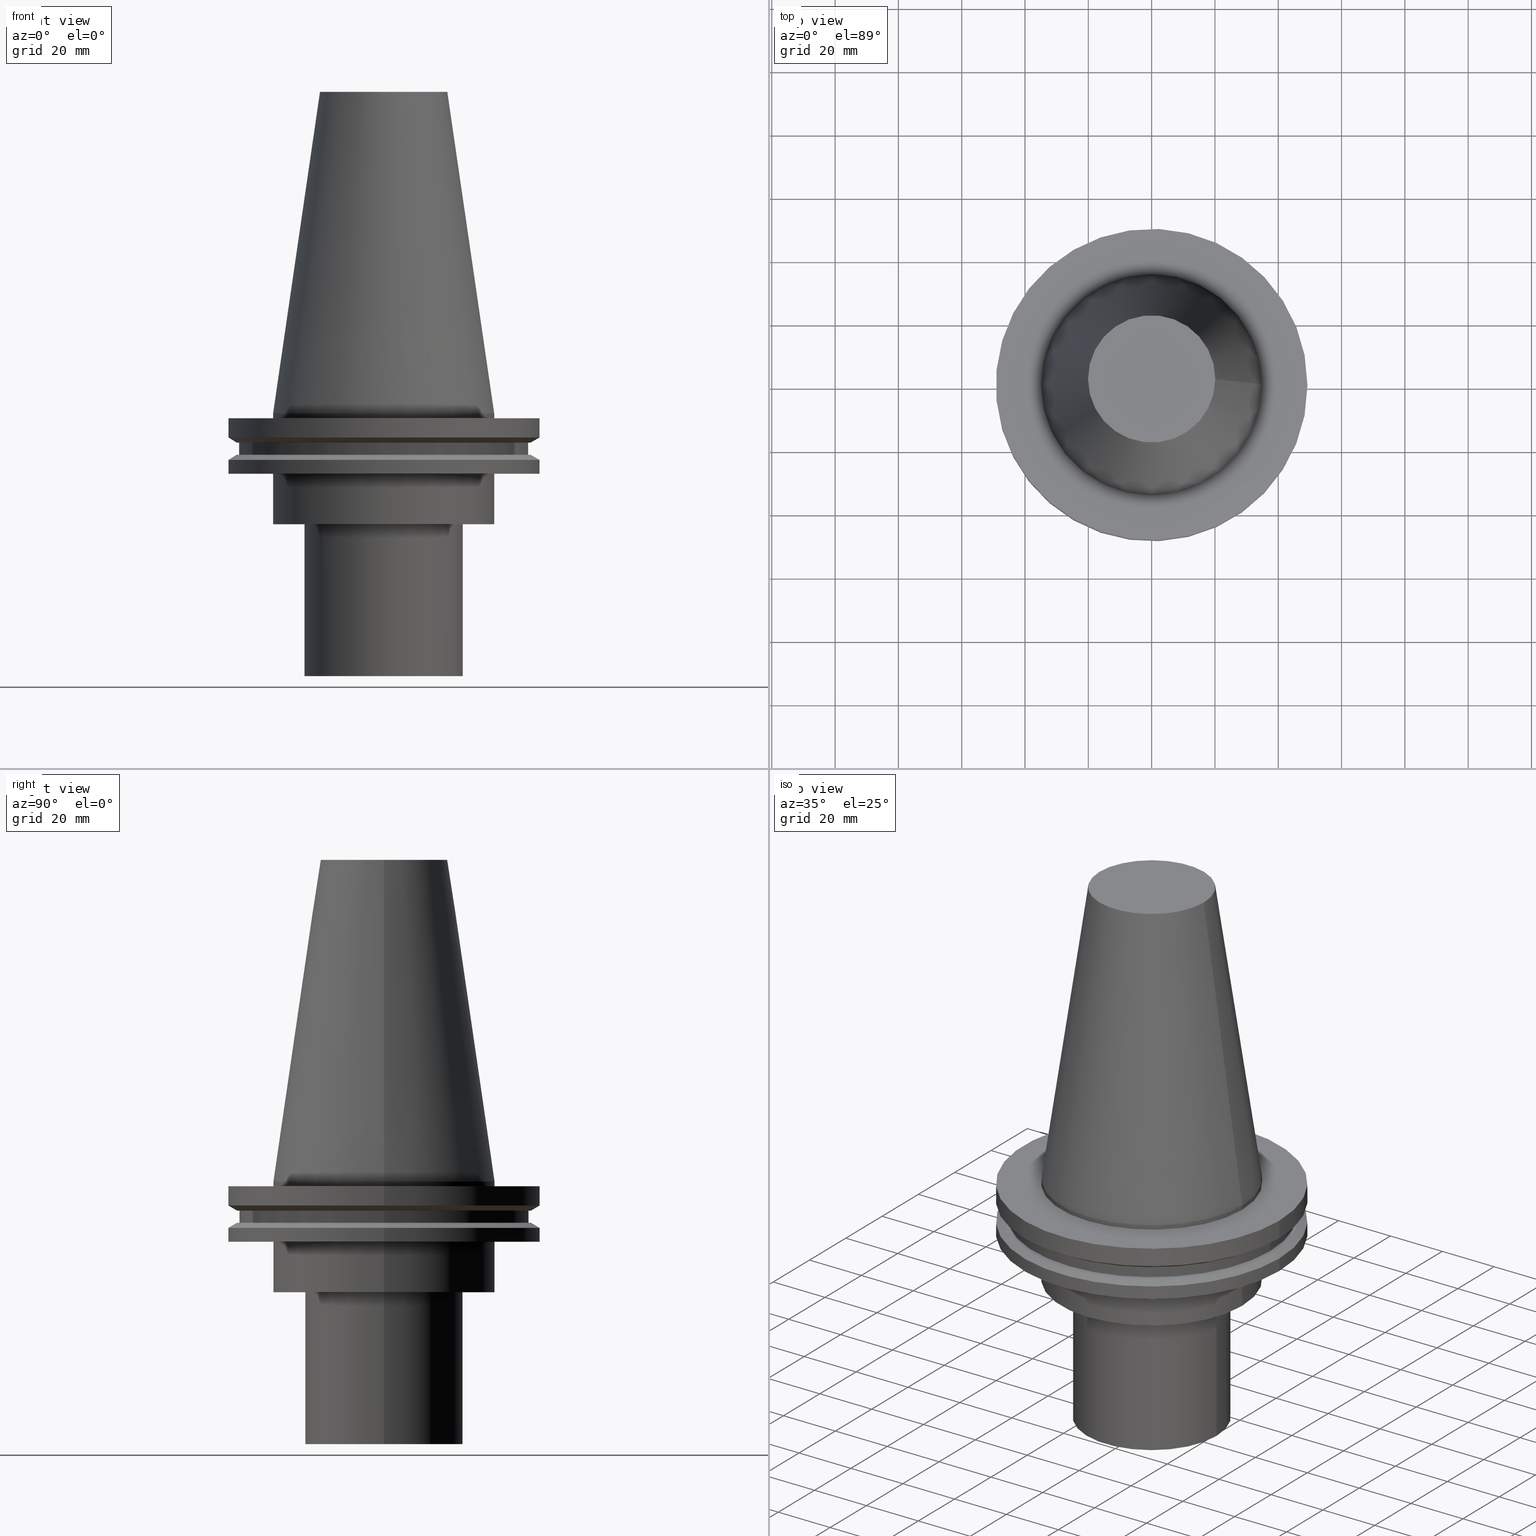
[diagram: canonical four-view strip — front | top / right | iso, engineering-drawing reading convention]
A machine part, canonical four-view strip (front | top / right | iso — engineering-drawing reading convention). The complete STEP part file that produces these views, byte-faithful:
ISO-10303-21;
HEADER;
FILE_DESCRIPTION (( 'STEP AP203' ),
    '1' );
FILE_NAME ('11.368.652.stp',
    '2022-03-09T15:20:57',
    ( '' ),
    ( '' ),
    'SwSTEP 2.0',
    'SolidWorks 2021',
    '' );
FILE_SCHEMA (( 'CONFIG_CONTROL_DESIGN' ));
ENDSEC;

DATA;
#1 = FACE_BOUND ( 'NONE', #37, .T. ) ;
#2 = PLANE ( 'NONE',  #176 ) ;
#3 = CARTESIAN_POINT ( 'NONE',  ( 49.21499999999999631, 0.000000000000000000, -1.499999999999987566 ) ) ;
#4 = EDGE_LOOP ( 'NONE', ( #29 ) ) ;
#5 = EDGE_CURVE ( 'NONE', #139, #139, #308, .T. ) ;
#6 = CARTESIAN_POINT ( 'NONE',  ( 0.000000000000000000, 0.000000000000000000, 0.000000000000000000 ) ) ;
#7 = COORDINATED_UNIVERSAL_TIME_OFFSET ( 6, 0, .BEHIND. ) ;
#8 = AXIS2_PLACEMENT_3D ( 'NONE', #344, #74, #14 ) ;
#9 = DIRECTION ( 'NONE',  ( 1.000000000000000000, 0.000000000000000000, 0.000000000000000000 ) ) ;
#10 = CARTESIAN_POINT ( 'NONE',  ( 49.21499999999998920, 0.000000000000000000, -14.65761014474876944 ) ) ;
#11 = AXIS2_PLACEMENT_3D ( 'NONE', #267, #376, #383 ) ;
#12 = ADVANCED_FACE ( 'NONE', ( #1, #124 ), #239, .T. ) ;
#13 = DIRECTION ( 'NONE',  ( -0.000000000000000000, -0.000000000000000000, 1.000000000000000000 ) ) ;
#14 = DIRECTION ( 'NONE',  ( 1.000000000000000000, 0.000000000000000000, 0.000000000000000000 ) ) ;
#15 = FACE_OUTER_BOUND ( 'NONE', #78, .T. ) ;
#16 = CALENDAR_DATE ( 2022, 9, 3 ) ;
#17 = CC_DESIGN_SECURITY_CLASSIFICATION ( #43, ( #364 ) ) ;
#18 = PLANE ( 'NONE',  #38 ) ;
#19 = DIRECTION ( 'NONE',  ( 1.000000000000000000, 0.000000000000000000, 0.000000000000000000 ) ) ;
#20 = EDGE_LOOP ( 'NONE', ( #157 ) ) ;
#21 = FACE_OUTER_BOUND ( 'NONE', #322, .T. ) ;
#22 = PERSON_AND_ORGANIZATION_ROLE ( 'design_supplier' ) ;
#23 = ORIENTED_EDGE ( 'NONE', *, *, #223, .F. ) ;
#24 = LOCAL_TIME ( 9, 20, 57.00000000000000000, #229 ) ;
#25 = CARTESIAN_POINT ( 'NONE',  ( 0.000000000000000000, 0.000000000000000000, -9.204999999999991189 ) ) ;
#26 = PLANE ( 'NONE',  #358 ) ;
#27 = ORIENTED_EDGE ( 'NONE', *, *, #155, .T. ) ;
#28 = VERTEX_POINT ( 'NONE', #149 ) ;
#29 = ORIENTED_EDGE ( 'NONE', *, *, #345, .T. ) ;
#30 = ADVANCED_FACE ( 'NONE', ( #122, #332 ), #60, .T. ) ;
#31 = EDGE_LOOP ( 'NONE', ( #361 ) ) ;
#32 = EDGE_LOOP ( 'NONE', ( #334 ) ) ;
#33 = EDGE_LOOP ( 'NONE', ( #148 ) ) ;
#34 = DIRECTION ( 'NONE',  ( 1.000000000000000000, 0.000000000000000000, 0.000000000000000000 ) ) ;
#35 = EDGE_CURVE ( 'NONE', #300, #300, #324, .T. ) ;
#36 = CARTESIAN_POINT ( 'NONE',  ( 25.00000000000000000, 0.000000000000000000, -83.00000000000000000 ) ) ;
#37 = EDGE_LOOP ( 'NONE', ( #238 ) ) ;
#38 = AXIS2_PLACEMENT_3D ( 'NONE', #228, #379, #75 ) ;
#39 = CARTESIAN_POINT ( 'NONE',  ( 0.000000000000000000, 0.000000000000000000, 101.5999999999999943 ) ) ;
#40 = APPROVAL_ROLE ( '' ) ;
#41 = ADVANCED_BREP_SHAPE_REPRESENTATION ( '11.368.652', ( #170, #8 ), #336 ) ;
#42 = FACE_OUTER_BOUND ( 'NONE', #20, .T. ) ;
#43 = SECURITY_CLASSIFICATION ( '', '', #146 ) ;
#44 = APPROVAL ( #335, 'UNSPECIFIED' ) ;
#45 = CARTESIAN_POINT ( 'NONE',  ( 0.000000000000000000, 0.000000000000000000, -19.04999999999999716 ) ) ;
#46 = CARTESIAN_POINT ( 'NONE',  ( 46.43919780457007818, 0.000000000000000000, -13.05499999999999794 ) ) ;
#47 = DIRECTION ( 'NONE',  ( 1.000000000000000000, 0.000000000000000000, 0.000000000000000000 ) ) ;
#48 = APPROVAL_STATUS ( 'not_yet_approved' ) ;
#49 = DIRECTION ( 'NONE',  ( 0.000000000000000000, -0.000000000000000000, 1.000000000000000000 ) ) ;
#50 = DATE_AND_TIME ( #264, #24 ) ;
#51 = CARTESIAN_POINT ( 'NONE',  ( 0.000000000000000000, 0.000000000000000000, 101.5999999999999943 ) ) ;
#52 = PERSON_AND_ORGANIZATION_ROLE ( 'classification_officer' ) ;
#53 = CARTESIAN_POINT ( 'NONE',  ( 0.000000000000000000, 46.43919780457007818, -9.204999999999998295 ) ) ;
#54 = FACE_OUTER_BOUND ( 'NONE', #93, .T. ) ;
#55 = CC_DESIGN_DATE_AND_TIME_ASSIGNMENT ( #380, #293, ( #43 ) ) ;
#56 = FACE_BOUND ( 'NONE', #388, .T. ) ;
#57 = UNCERTAINTY_MEASURE_WITH_UNIT (LENGTH_MEASURE( 1.000000000000000082E-05 ), #314, 'distance_accuracy_value', 'NONE');
#58 = ADVANCED_FACE ( 'NONE', ( #197 ), #2, .F. ) ;
#59 = AXIS2_PLACEMENT_3D ( 'NONE', #347, #297, #203 ) ;
#60 = CYLINDRICAL_SURFACE ( 'NONE', #69, 45.64500000000000313 ) ;
#61 = PRODUCT ( '11.368.652', '11.368.652', '', ( #247 ) ) ;
#62 = DIRECTION ( 'NONE',  ( 1.000000000000000000, 0.000000000000000000, 0.000000000000000000 ) ) ;
#63 = CC_DESIGN_PERSON_AND_ORGANIZATION_ASSIGNMENT ( #342, #189, ( #61 ) ) ;
#64 = APPROVAL_DATE_TIME ( #136, #83 ) ;
#65 = EDGE_LOOP ( 'NONE', ( #23 ) ) ;
#66 = DIRECTION ( 'NONE',  ( 1.000000000000000000, 0.000000000000000000, 0.000000000000000000 ) ) ;
#67 = CIRCLE ( 'NONE', #392, 20.10819343178871321 ) ;
#68 = VERTEX_POINT ( 'NONE', #166 ) ;
#69 = AXIS2_PLACEMENT_3D ( 'NONE', #184, #302, #280 ) ;
#70 = PLANE ( 'NONE',  #82 ) ;
#71 = DIRECTION ( 'NONE',  ( -0.000000000000000000, -0.000000000000000000, 1.000000000000000000 ) ) ;
#72 = CARTESIAN_POINT ( 'NONE',  ( 45.64500000000000313, 0.000000000000000000, -9.204999999999991189 ) ) ;
#73 = DIRECTION ( 'NONE',  ( -0.000000000000000000, -0.000000000000000000, 1.000000000000000000 ) ) ;
#74 = DIRECTION ( 'NONE',  ( 0.000000000000000000, 0.000000000000000000, 1.000000000000000000 ) ) ;
#75 = DIRECTION ( 'NONE',  ( -1.000000000000000000, 0.000000000000000000, -0.000000000000000000 ) ) ;
#76 = SHAPE_DEFINITION_REPRESENTATION ( #304, #41 ) ;
#77 = DIRECTION ( 'NONE',  ( 0.000000000000000000, -0.000000000000000000, 1.000000000000000000 ) ) ;
#78 = EDGE_LOOP ( 'NONE', ( #217 ) ) ;
#79 = DIRECTION ( 'NONE',  ( 1.000000000000000000, 0.000000000000000000, 0.000000000000000000 ) ) ;
#80 = EDGE_LOOP ( 'NONE', ( #359 ) ) ;
#81 = CARTESIAN_POINT ( 'NONE',  ( 49.21500000000000341, 0.000000000000000000, -7.602389855251287187 ) ) ;
#82 = AXIS2_PLACEMENT_3D ( 'NONE', #246, #316, #162 ) ;
#83 = APPROVAL ( #48, 'UNSPECIFIED' ) ;
#84 = DIRECTION ( 'NONE',  ( 1.000000000000000000, 0.000000000000000000, 0.000000000000000000 ) ) ;
#85 = APPROVAL_PERSON_ORGANIZATION ( #307, #83, #169 ) ;
#86 = CARTESIAN_POINT ( 'NONE',  ( 49.21499999999998920, 0.000000000000000000, -19.04999999999999716 ) ) ;
#87 = ADVANCED_FACE ( 'NONE', ( #309, #42 ), #158, .T. ) ;
#88 = AXIS2_PLACEMENT_3D ( 'NONE', #284, #375, #125 ) ;
#89 = AXIS2_PLACEMENT_3D ( 'NONE', #291, #353, #19 ) ;
#90 = ORIENTED_EDGE ( 'NONE', *, *, #213, .T. ) ;
#91 = ORIENTED_EDGE ( 'NONE', *, *, #393, .T. ) ;
#92 = CC_DESIGN_PERSON_AND_ORGANIZATION_ASSIGNMENT ( #231, #52, ( #43 ) ) ;
#93 = EDGE_LOOP ( 'NONE', ( #216 ) ) ;
#94 = DIRECTION ( 'NONE',  ( 1.000000000000000000, 0.000000000000000000, 0.000000000000000000 ) ) ;
#95 = CIRCLE ( 'NONE', #59, 25.00000000000000000 ) ;
#96 = APPLICATION_PROTOCOL_DEFINITION ( 'international standard', 'config_control_design', 1994, #389 ) ;
#97 = FACE_OUTER_BOUND ( 'NONE', #32, .T. ) ;
#98 = AXIS2_PLACEMENT_3D ( 'NONE', #39, #288, #47 ) ;
#99 = VERTEX_POINT ( 'NONE', #163 ) ;
#100 = CIRCLE ( 'NONE', #161, 34.92499999999999005 ) ;
#101 = CYLINDRICAL_SURFACE ( 'NONE', #390, 25.00000000000000000 ) ;
#102 = DIRECTION ( 'NONE',  ( -0.000000000000000000, -0.000000000000000000, 1.000000000000000000 ) ) ;
#103 = DATE_AND_TIME ( #198, #165 ) ;
#104 = DIRECTION ( 'NONE',  ( 1.000000000000000000, 0.000000000000000000, 0.000000000000000000 ) ) ;
#105 = CARTESIAN_POINT ( 'NONE',  ( 34.92499999999999005, 0.000000000000000000, -1.499999999999987566 ) ) ;
#106 = EDGE_CURVE ( 'NONE', #181, #181, #204, .T. ) ;
#107 = CARTESIAN_POINT ( 'NONE',  ( 0.000000000000000000, 0.000000000000000000, -1.499999999999987566 ) ) ;
#108 = PERSON_AND_ORGANIZATION ( #274, #256 ) ;
#109 = FACE_BOUND ( 'NONE', #385, .T. ) ;
#110 = APPROVAL_ROLE ( '' ) ;
#111 = LOCAL_TIME ( 9, 20, 57.00000000000000000, #7 ) ;
#112 = DIRECTION ( 'NONE',  ( 1.000000000000000000, 0.000000000000000000, 0.000000000000000000 ) ) ;
#113 = ADVANCED_FACE ( 'NONE', ( #220, #97 ), #188, .T. ) ;
#114 = FACE_OUTER_BOUND ( 'NONE', #236, .T. ) ;
#115 = ORIENTED_EDGE ( 'NONE', *, *, #106, .F. ) ;
#116 = CARTESIAN_POINT ( 'NONE',  ( 0.000000000000000000, 34.92499999999999716, -35.00000000000000000 ) ) ;
#117 = EDGE_LOOP ( 'NONE', ( #233 ) ) ;
#118 = CONICAL_SURFACE ( 'NONE', #232, 49.21499999999998920, 1.047197551196554333 ) ;
#119 = CARTESIAN_POINT ( 'NONE',  ( 34.92499999999999716, 0.000000000000000000, -19.04999999999999716 ) ) ;
#120 = AXIS2_PLACEMENT_3D ( 'NONE', #53, #237, #84 ) ;
#121 = AXIS2_PLACEMENT_3D ( 'NONE', #340, #193, #218 ) ;
#122 = FACE_OUTER_BOUND ( 'NONE', #272, .T. ) ;
#123 = ADVANCED_FACE ( 'NONE', ( #370 ), #70, .F. ) ;
#124 = FACE_OUTER_BOUND ( 'NONE', #266, .T. ) ;
#125 = DIRECTION ( 'NONE',  ( 1.000000000000000000, 0.000000000000000000, 0.000000000000000000 ) ) ;
#126 =( NAMED_UNIT ( * ) SI_UNIT ( $, .STERADIAN. ) SOLID_ANGLE_UNIT ( ) );
#127 = DESIGN_CONTEXT ( 'detailed design', #389, 'design' ) ;
#128 = CARTESIAN_POINT ( 'NONE',  ( 0.000000000000000000, 0.000000000000000000, 0.000000000000000000 ) ) ;
#129 = CIRCLE ( 'NONE', #144, 45.64500000000000313 ) ;
#130 = PERSON_AND_ORGANIZATION ( #274, #256 ) ;
#131 = FACE_OUTER_BOUND ( 'NONE', #262, .T. ) ;
#132 = AXIS2_PLACEMENT_3D ( 'NONE', #248, #102, #224 ) ;
#133 = CARTESIAN_POINT ( 'NONE',  ( 0.000000000000000000, 0.000000000000000000, -9.204999999999991189 ) ) ;
#134 = APPROVAL_DATE_TIME ( #287, #44 ) ;
#135 = CARTESIAN_POINT ( 'NONE',  ( 0.000000000000000000, 0.000000000000000000, 101.5999999999999943 ) ) ;
#136 = DATE_AND_TIME ( #16, #381 ) ;
#137 = DIRECTION ( 'NONE',  ( -0.000000000000000000, -0.000000000000000000, 1.000000000000000000 ) ) ;
#138 = AXIS2_PLACEMENT_3D ( 'NONE', #25, #259, #145 ) ;
#139 = VERTEX_POINT ( 'NONE', #81 ) ;
#140 = APPROVAL_DATE_TIME ( #50, #175 ) ;
#141 = ORIENTED_EDGE ( 'NONE', *, *, #155, .F. ) ;
#142 = ADVANCED_FACE ( 'NONE', ( #15, #282 ), #368, .T. ) ;
#143 = CARTESIAN_POINT ( 'NONE',  ( 0.000000000000000000, 49.21499999999999631, -1.499999999999992895 ) ) ;
#144 = AXIS2_PLACEMENT_3D ( 'NONE', #269, #234, #327 ) ;
#145 = DIRECTION ( 'NONE',  ( 1.000000000000000000, 0.000000000000000000, 0.000000000000000000 ) ) ;
#146 = SECURITY_CLASSIFICATION_LEVEL ( 'unclassified' ) ;
#147 = FACE_OUTER_BOUND ( 'NONE', #150, .T. ) ;
#148 = ORIENTED_EDGE ( 'NONE', *, *, #191, .F. ) ;
#149 = CARTESIAN_POINT ( 'NONE',  ( 34.92499999999999005, 0.000000000000000000, 0.000000000000000000 ) ) ;
#150 = EDGE_LOOP ( 'NONE', ( #245 ) ) ;
#151 = ADVANCED_FACE ( 'NONE', ( #131, #286 ), #101, .T. ) ;
#152 = APPROVAL_PERSON_ORGANIZATION ( #311, #44, #40 ) ;
#153 = ORIENTED_EDGE ( 'NONE', *, *, #227, .F. ) ;
#154 = AXIS2_PLACEMENT_3D ( 'NONE', #391, #365, #62 ) ;
#155 = EDGE_CURVE ( 'NONE', #28, #28, #100, .T. ) ;
#156 = EDGE_LOOP ( 'NONE', ( #352 ) ) ;
#157 = ORIENTED_EDGE ( 'NONE', *, *, #223, .T. ) ;
#158 = CYLINDRICAL_SURFACE ( 'NONE', #88, 34.92499999999999005 ) ;
#159 = EDGE_CURVE ( 'NONE', #270, #270, #67, .T. ) ;
#160 = DIRECTION ( 'NONE',  ( 0.000000000000000000, 0.000000000000000000, -1.000000000000000000 ) ) ;
#161 = AXIS2_PLACEMENT_3D ( 'NONE', #128, #251, #9 ) ;
#162 = DIRECTION ( 'NONE',  ( -1.000000000000000000, 0.000000000000000000, -0.000000000000000000 ) ) ;
#163 = CARTESIAN_POINT ( 'NONE',  ( 45.64500000000000313, 0.000000000000000000, -13.05499999999999794 ) ) ;
#164 = DIRECTION ( 'NONE',  ( -0.000000000000000000, -0.000000000000000000, 1.000000000000000000 ) ) ;
#165 = LOCAL_TIME ( 9, 20, 57.00000000000000000, #258 ) ;
#166 = CARTESIAN_POINT ( 'NONE',  ( 34.92499999999999716, 0.000000000000000000, -35.00000000000000000 ) ) ;
#167 = CARTESIAN_POINT ( 'NONE',  ( 0.000000000000000000, 0.000000000000000000, -83.00000000000000000 ) ) ;
#168 = CALENDAR_DATE ( 2022, 9, 3 ) ;
#169 = APPROVAL_ROLE ( '' ) ;
#170 = MANIFOLD_SOLID_BREP ( 'CKB', #279 ) ;
#171 = PLANE ( 'NONE',  #120 ) ;
#172 = DIRECTION ( 'NONE',  ( 1.000000000000000000, 0.000000000000000000, 0.000000000000000000 ) ) ;
#173 = CALENDAR_DATE ( 2022, 9, 3 ) ;
#174 = EDGE_LOOP ( 'NONE', ( #183 ) ) ;
#175 = APPROVAL ( #328, 'UNSPECIFIED' ) ;
#176 = AXIS2_PLACEMENT_3D ( 'NONE', #372, #222, #317 ) ;
#177 = FACE_BOUND ( 'NONE', #65, .T. ) ;
#178 = PLANE ( 'NONE',  #219 ) ;
#179 = FACE_OUTER_BOUND ( 'NONE', #214, .T. ) ;
#180 = ORIENTED_EDGE ( 'NONE', *, *, #325, .F. ) ;
#181 = VERTEX_POINT ( 'NONE', #329 ) ;
#182 = EDGE_CURVE ( 'NONE', #357, #357, #362, .T. ) ;
#183 = ORIENTED_EDGE ( 'NONE', *, *, #182, .T. ) ;
#184 = CARTESIAN_POINT ( 'NONE',  ( 0.000000000000000000, 0.000000000000000000, 101.5999999999999943 ) ) ;
#185 = AXIS2_PLACEMENT_3D ( 'NONE', #337, #343, #66 ) ;
#186 = EDGE_LOOP ( 'NONE', ( #202 ) ) ;
#187 = AXIS2_PLACEMENT_3D ( 'NONE', #51, #263, #112 ) ;
#188 = CYLINDRICAL_SURFACE ( 'NONE', #98, 34.92499999999999716 ) ;
#189 = PERSON_AND_ORGANIZATION_ROLE ( 'design_owner' ) ;
#190 = CARTESIAN_POINT ( 'NONE',  ( 0.000000000000000000, 0.000000000000000000, 0.000000000000000000 ) ) ;
#191 = EDGE_CURVE ( 'NONE', #209, #209, #292, .T. ) ;
#192 = VERTEX_POINT ( 'NONE', #371 ) ;
#193 = DIRECTION ( 'NONE',  ( -0.000000000000000000, -0.000000000000000000, 1.000000000000000000 ) ) ;
#194 = DIRECTION ( 'NONE',  ( 1.000000000000000000, 0.000000000000000000, 0.000000000000000000 ) ) ;
#195 = APPROVAL_PERSON_ORGANIZATION ( #320, #175, #110 ) ;
#196 = CC_DESIGN_DATE_AND_TIME_ASSIGNMENT ( #103, #318, ( #333 ) ) ;
#197 = FACE_OUTER_BOUND ( 'NONE', #33, .T. ) ;
#198 = CALENDAR_DATE ( 2022, 9, 3 ) ;
#199 = DIRECTION ( 'NONE',  ( 0.000000000000000000, 0.000000000000000000, -1.000000000000000000 ) ) ;
#200 = DIRECTION ( 'NONE',  ( 0.000000000000000000, 0.000000000000000000, -1.000000000000000000 ) ) ;
#201 = PERSON_AND_ORGANIZATION_ROLE ( 'creator' ) ;
#202 = ORIENTED_EDGE ( 'NONE', *, *, #35, .F. ) ;
#203 = DIRECTION ( 'NONE',  ( 1.000000000000000000, 0.000000000000000000, 0.000000000000000000 ) ) ;
#204 = CIRCLE ( 'NONE', #121, 46.43919780457007818 ) ;
#205 = FACE_BOUND ( 'NONE', #348, .T. ) ;
#206 = FACE_BOUND ( 'NONE', #210, .T. ) ;
#207 = PERSON_AND_ORGANIZATION ( #274, #256 ) ;
#208 = ORIENTED_EDGE ( 'NONE', *, *, #191, .T. ) ;
#209 = VERTEX_POINT ( 'NONE', #36 ) ;
#210 = EDGE_LOOP ( 'NONE', ( #241 ) ) ;
#211 = AXIS2_PLACEMENT_3D ( 'NONE', #133, #254, #94 ) ;
#212 = DIRECTION ( 'NONE',  ( -1.000000000000000000, 0.000000000000000000, 0.000000000000000000 ) ) ;
#213 = EDGE_CURVE ( 'NONE', #249, #249, #221, .T. ) ;
#214 = EDGE_LOOP ( 'NONE', ( #153 ) ) ;
#215 = CC_DESIGN_APPROVAL ( #83, ( #364 ) ) ;
#216 = ORIENTED_EDGE ( 'NONE', *, *, #182, .F. ) ;
#217 = ORIENTED_EDGE ( 'NONE', *, *, #310, .F. ) ;
#218 = DIRECTION ( 'NONE',  ( 1.000000000000000000, 0.000000000000000000, 0.000000000000000000 ) ) ;
#219 = AXIS2_PLACEMENT_3D ( 'NONE', #261, #77, #79 ) ;
#220 = FACE_OUTER_BOUND ( 'NONE', #186, .T. ) ;
#221 = CIRCLE ( 'NONE', #211, 45.64500000000000313 ) ;
#222 = DIRECTION ( 'NONE',  ( 0.000000000000000000, -0.000000000000000000, 1.000000000000000000 ) ) ;
#223 = EDGE_CURVE ( 'NONE', #252, #252, #369, .T. ) ;
#224 = DIRECTION ( 'NONE',  ( 1.000000000000000000, 0.000000000000000000, 0.000000000000000000 ) ) ;
#225 = VERTEX_POINT ( 'NONE', #46 ) ;
#226 = DIRECTION ( 'NONE',  ( -0.000000000000000000, -0.000000000000000000, 1.000000000000000000 ) ) ;
#227 = EDGE_CURVE ( 'NONE', #68, #68, #326, .T. ) ;
#228 = CARTESIAN_POINT ( 'NONE',  ( 0.000000000000000000, 45.64500000000000313, -13.05499999999999794 ) ) ;
#229 = COORDINATED_UNIVERSAL_TIME_OFFSET ( 6, 0, .BEHIND. ) ;
#230 = FACE_BOUND ( 'NONE', #271, .T. ) ;
#231 = PERSON_AND_ORGANIZATION ( #274, #256 ) ;
#232 = AXIS2_PLACEMENT_3D ( 'NONE', #355, #199, #384 ) ;
#233 = ORIENTED_EDGE ( 'NONE', *, *, #106, .T. ) ;
#234 = DIRECTION ( 'NONE',  ( -0.000000000000000000, -0.000000000000000000, 1.000000000000000000 ) ) ;
#235 = FACE_OUTER_BOUND ( 'NONE', #80, .T. ) ;
#236 = EDGE_LOOP ( 'NONE', ( #115 ) ) ;
#237 = DIRECTION ( 'NONE',  ( 0.000000000000000000, -0.000000000000000000, 1.000000000000000000 ) ) ;
#238 = ORIENTED_EDGE ( 'NONE', *, *, #159, .F. ) ;
#239 = CONICAL_SURFACE ( 'NONE', #273, 34.92499999999999005, 0.1448138465474119452 ) ;
#240 = ADVANCED_FACE ( 'NONE', ( #205, #21 ), #18, .F. ) ;
#241 = ORIENTED_EDGE ( 'NONE', *, *, #35, .T. ) ;
#242 = ORIENTED_EDGE ( 'NONE', *, *, #345, .F. ) ;
#243 = APPLICATION_CONTEXT ( 'configuration controlled 3d designs of mechanical parts and assemblies' ) ;
#244 = CC_DESIGN_APPROVAL ( #175, ( #43 ) ) ;
#245 = ORIENTED_EDGE ( 'NONE', *, *, #5, .F. ) ;
#246 = CARTESIAN_POINT ( 'NONE',  ( 0.000000000000000000, 20.10819343178871321, 101.5999999999999943 ) ) ;
#247 = MECHANICAL_CONTEXT ( 'NONE', #243, 'mechanical' ) ;
#248 = CARTESIAN_POINT ( 'NONE',  ( 0.000000000000000000, 0.000000000000000000, -1.499999999999987566 ) ) ;
#249 = VERTEX_POINT ( 'NONE', #72 ) ;
#250 = ADVANCED_FACE ( 'NONE', ( #114, #230 ), #171, .F. ) ;
#251 = DIRECTION ( 'NONE',  ( -0.000000000000000000, -0.000000000000000000, 1.000000000000000000 ) ) ;
#252 = VERTEX_POINT ( 'NONE', #105 ) ;
#253 = AXIS2_PLACEMENT_3D ( 'NONE', #135, #226, #366 ) ;
#254 = DIRECTION ( 'NONE',  ( -0.000000000000000000, -0.000000000000000000, 1.000000000000000000 ) ) ;
#255 = PERSON_AND_ORGANIZATION_ROLE ( 'creator' ) ;
#256 = ORGANIZATION ( 'UNSPECIFIED', 'UNSPECIFIED', '' ) ;
#257 = CARTESIAN_POINT ( 'NONE',  ( 0.000000000000000000, 0.000000000000000000, -19.04999999999999716 ) ) ;
#258 = COORDINATED_UNIVERSAL_TIME_OFFSET ( 6, 0, .BEHIND. ) ;
#259 = DIRECTION ( 'NONE',  ( -0.000000000000000000, -0.000000000000000000, 1.000000000000000000 ) ) ;
#260 = CIRCLE ( 'NONE', #11, 49.21499999999998920 ) ;
#261 = CARTESIAN_POINT ( 'NONE',  ( 0.000000000000000000, 49.21499999999998920, -19.04999999999999716 ) ) ;
#262 = EDGE_LOOP ( 'NONE', ( #180 ) ) ;
#263 = DIRECTION ( 'NONE',  ( -0.000000000000000000, -0.000000000000000000, 1.000000000000000000 ) ) ;
#264 = CALENDAR_DATE ( 2022, 9, 3 ) ;
#265 = LOCAL_TIME ( 9, 20, 57.00000000000000000, #351 ) ;
#266 = EDGE_LOOP ( 'NONE', ( #27 ) ) ;
#267 = CARTESIAN_POINT ( 'NONE',  ( 0.000000000000000000, 0.000000000000000000, -14.65761014474876944 ) ) ;
#268 = ADVANCED_FACE ( 'NONE', ( #147, #349 ), #338, .T. ) ;
#269 = CARTESIAN_POINT ( 'NONE',  ( 0.000000000000000000, 0.000000000000000000, -13.05499999999999794 ) ) ;
#270 = VERTEX_POINT ( 'NONE', #387 ) ;
#271 = EDGE_LOOP ( 'NONE', ( #90 ) ) ;
#272 = EDGE_LOOP ( 'NONE', ( #354 ) ) ;
#273 = AXIS2_PLACEMENT_3D ( 'NONE', #190, #160, #212 ) ;
#274 = PERSON ( 'UNSPECIFIED', 'UNSPECIFIED', 'UNSPECIFIED', ('UNSPECIFIED'), ('UNSPECIFIED'), ('UNSPECIFIED') ) ;
#275 = AXIS2_PLACEMENT_3D ( 'NONE', #257, #73, #313 ) ;
#276 = EDGE_LOOP ( 'NONE', ( #141 ) ) ;
#277 = CC_DESIGN_PERSON_AND_ORGANIZATION_ASSIGNMENT ( #108, #201, ( #364 ) ) ;
#278 = EDGE_LOOP ( 'NONE', ( #299 ) ) ;
#279 = CLOSED_SHELL ( 'NONE', ( #12, #123, #378, #113, #296, #142, #312, #240, #30, #250, #268, #360, #350, #87, #151, #58 ) ) ;
#280 = DIRECTION ( 'NONE',  ( 1.000000000000000000, 0.000000000000000000, 0.000000000000000000 ) ) ;
#281 = VERTEX_POINT ( 'NONE', #3 ) ;
#282 = FACE_OUTER_BOUND ( 'NONE', #174, .T. ) ;
#283 =( NAMED_UNIT ( * ) PLANE_ANGLE_UNIT ( ) SI_UNIT ( $, .RADIAN. ) );
#284 = CARTESIAN_POINT ( 'NONE',  ( 0.000000000000000000, 0.000000000000000000, 101.5999999999999943 ) ) ;
#285 = VERTEX_POINT ( 'NONE', #10 ) ;
#286 = FACE_OUTER_BOUND ( 'NONE', #295, .T. ) ;
#287 = DATE_AND_TIME ( #168, #111 ) ;
#288 = DIRECTION ( 'NONE',  ( -0.000000000000000000, -0.000000000000000000, 1.000000000000000000 ) ) ;
#289 = COORDINATED_UNIVERSAL_TIME_OFFSET ( 6, 0, .BEHIND. ) ;
#290 = DIRECTION ( 'NONE',  ( -1.000000000000000000, 0.000000000000000000, -0.000000000000000000 ) ) ;
#291 = CARTESIAN_POINT ( 'NONE',  ( 0.000000000000000000, 0.000000000000000000, -13.05499999999999794 ) ) ;
#292 = CIRCLE ( 'NONE', #377, 25.00000000000000000 ) ;
#293 = DATE_TIME_ROLE ( 'classification_date' ) ;
#294 = FACE_OUTER_BOUND ( 'NONE', #395, .T. ) ;
#295 = EDGE_LOOP ( 'NONE', ( #208 ) ) ;
#296 = ADVANCED_FACE ( 'NONE', ( #54, #206 ), #178, .F. ) ;
#297 = DIRECTION ( 'NONE',  ( -0.000000000000000000, -0.000000000000000000, 1.000000000000000000 ) ) ;
#298 = PLANE ( 'NONE',  #301 ) ;
#299 = ORIENTED_EDGE ( 'NONE', *, *, #5, .T. ) ;
#300 = VERTEX_POINT ( 'NONE', #119 ) ;
#301 = AXIS2_PLACEMENT_3D ( 'NONE', #143, #200, #290 ) ;
#302 = DIRECTION ( 'NONE',  ( -0.000000000000000000, -0.000000000000000000, 1.000000000000000000 ) ) ;
#303 = ORIENTED_EDGE ( 'NONE', *, *, #363, .F. ) ;
#304 = PRODUCT_DEFINITION_SHAPE ( 'NONE', 'NONE',  #333 ) ;
#305 = CIRCLE ( 'NONE', #315, 49.21499999999999631 ) ;
#306 = DIRECTION ( 'NONE',  ( 1.000000000000000000, 0.000000000000000000, 0.000000000000000000 ) ) ;
#307 = PERSON_AND_ORGANIZATION ( #274, #256 ) ;
#308 = CIRCLE ( 'NONE', #154, 49.21500000000000341 ) ;
#309 = FACE_OUTER_BOUND ( 'NONE', #276, .T. ) ;
#310 = EDGE_CURVE ( 'NONE', #285, #285, #260, .T. ) ;
#311 = PERSON_AND_ORGANIZATION ( #274, #256 ) ;
#312 = ADVANCED_FACE ( 'NONE', ( #109, #235 ), #118, .T. ) ;
#313 = DIRECTION ( 'NONE',  ( 1.000000000000000000, 0.000000000000000000, 0.000000000000000000 ) ) ;
#314 =( LENGTH_UNIT ( ) NAMED_UNIT ( * ) SI_UNIT ( .MILLI., .METRE. ) );
#315 = AXIS2_PLACEMENT_3D ( 'NONE', #107, #137, #323 ) ;
#316 = DIRECTION ( 'NONE',  ( 0.000000000000000000, 0.000000000000000000, -1.000000000000000000 ) ) ;
#317 = DIRECTION ( 'NONE',  ( 1.000000000000000000, 0.000000000000000000, 0.000000000000000000 ) ) ;
#318 = DATE_TIME_ROLE ( 'creation_date' ) ;
#319 = FACE_OUTER_BOUND ( 'NONE', #4, .T. ) ;
#320 = PERSON_AND_ORGANIZATION ( #274, #256 ) ;
#321 = CYLINDRICAL_SURFACE ( 'NONE', #187, 49.21499999999999631 ) ;
#322 = EDGE_LOOP ( 'NONE', ( #91 ) ) ;
#323 = DIRECTION ( 'NONE',  ( 1.000000000000000000, 0.000000000000000000, 0.000000000000000000 ) ) ;
#324 = CIRCLE ( 'NONE', #275, 34.92499999999999716 ) ;
#325 = EDGE_CURVE ( 'NONE', #192, #192, #95, .T. ) ;
#326 = CIRCLE ( 'NONE', #185, 34.92499999999999716 ) ;
#327 = DIRECTION ( 'NONE',  ( 1.000000000000000000, 0.000000000000000000, 0.000000000000000000 ) ) ;
#328 = APPROVAL_STATUS ( 'not_yet_approved' ) ;
#329 = CARTESIAN_POINT ( 'NONE',  ( 46.43919780457007818, 0.000000000000000000, -9.204999999999991189 ) ) ;
#330 = ORIENTED_EDGE ( 'NONE', *, *, #393, .F. ) ;
#331 = CC_DESIGN_APPROVAL ( #44, ( #333 ) ) ;
#332 = FACE_OUTER_BOUND ( 'NONE', #156, .T. ) ;
#333 = PRODUCT_DEFINITION ( 'UNKNOWN', '', #364, #127 ) ;
#334 = ORIENTED_EDGE ( 'NONE', *, *, #227, .T. ) ;
#335 = APPROVAL_STATUS ( 'not_yet_approved' ) ;
#336 =( GEOMETRIC_REPRESENTATION_CONTEXT ( 3 ) GLOBAL_UNCERTAINTY_ASSIGNED_CONTEXT ( ( #57 ) ) GLOBAL_UNIT_ASSIGNED_CONTEXT ( ( #314, #283, #126 ) ) REPRESENTATION_CONTEXT ( 'NONE', 'WORKASPACE' ) );
#337 = CARTESIAN_POINT ( 'NONE',  ( 0.000000000000000000, 0.000000000000000000, -35.00000000000000000 ) ) ;
#338 = CONICAL_SURFACE ( 'NONE', #138, 46.43919780457007818, 1.047197551196575205 ) ;
#339 = AXIS2_PLACEMENT_3D ( 'NONE', #45, #346, #306 ) ;
#340 = CARTESIAN_POINT ( 'NONE',  ( 0.000000000000000000, 0.000000000000000000, -9.204999999999991189 ) ) ;
#341 = CARTESIAN_POINT ( 'NONE',  ( 0.000000000000000000, 0.000000000000000000, 101.5999999999999801 ) ) ;
#342 = PERSON_AND_ORGANIZATION ( #274, #256 ) ;
#343 = DIRECTION ( 'NONE',  ( -0.000000000000000000, -0.000000000000000000, 1.000000000000000000 ) ) ;
#344 = CARTESIAN_POINT ( 'NONE',  ( 0.000000000000000000, 0.000000000000000000, 0.000000000000000000 ) ) ;
#345 = EDGE_CURVE ( 'NONE', #281, #281, #305, .T. ) ;
#346 = DIRECTION ( 'NONE',  ( -0.000000000000000000, -0.000000000000000000, 1.000000000000000000 ) ) ;
#347 = CARTESIAN_POINT ( 'NONE',  ( 0.000000000000000000, 0.000000000000000000, -35.00000000000000000 ) ) ;
#348 = EDGE_LOOP ( 'NONE', ( #303 ) ) ;
#349 = FACE_BOUND ( 'NONE', #117, .T. ) ;
#350 = ADVANCED_FACE ( 'NONE', ( #177, #319 ), #298, .F. ) ;
#351 = COORDINATED_UNIVERSAL_TIME_OFFSET ( 6, 0, .BEHIND. ) ;
#352 = ORIENTED_EDGE ( 'NONE', *, *, #363, .T. ) ;
#353 = DIRECTION ( 'NONE',  ( -0.000000000000000000, -0.000000000000000000, 1.000000000000000000 ) ) ;
#354 = ORIENTED_EDGE ( 'NONE', *, *, #213, .F. ) ;
#355 = CARTESIAN_POINT ( 'NONE',  ( 0.000000000000000000, 0.000000000000000000, -14.65761014474876944 ) ) ;
#356 = ORIENTED_EDGE ( 'NONE', *, *, #325, .T. ) ;
#357 = VERTEX_POINT ( 'NONE', #86 ) ;
#358 = AXIS2_PLACEMENT_3D ( 'NONE', #116, #49, #172 ) ;
#359 = ORIENTED_EDGE ( 'NONE', *, *, #310, .T. ) ;
#360 = ADVANCED_FACE ( 'NONE', ( #294, #382 ), #321, .T. ) ;
#361 = ORIENTED_EDGE ( 'NONE', *, *, #159, .T. ) ;
#362 = CIRCLE ( 'NONE', #339, 49.21499999999998920 ) ;
#363 = EDGE_CURVE ( 'NONE', #99, #99, #129, .T. ) ;
#364 = PRODUCT_DEFINITION_FORMATION_WITH_SPECIFIED_SOURCE ( 'ANY', '', #61, .NOT_KNOWN. ) ;
#365 = DIRECTION ( 'NONE',  ( -0.000000000000000000, -0.000000000000000000, 1.000000000000000000 ) ) ;
#366 = DIRECTION ( 'NONE',  ( 1.000000000000000000, 0.000000000000000000, 0.000000000000000000 ) ) ;
#367 = CIRCLE ( 'NONE', #89, 46.43919780457007818 ) ;
#368 = CYLINDRICAL_SURFACE ( 'NONE', #253, 49.21499999999998920 ) ;
#369 = CIRCLE ( 'NONE', #132, 34.92499999999999005 ) ;
#370 = FACE_OUTER_BOUND ( 'NONE', #31, .T. ) ;
#371 = CARTESIAN_POINT ( 'NONE',  ( 25.00000000000000000, 0.000000000000000000, -35.00000000000000000 ) ) ;
#372 = CARTESIAN_POINT ( 'NONE',  ( 0.000000000000000000, 25.00000000000000000, -83.00000000000000000 ) ) ;
#373 = APPLICATION_PROTOCOL_DEFINITION ( 'international standard', 'config_control_design', 1994, #243 ) ;
#374 = PRODUCT_RELATED_PRODUCT_CATEGORY ( 'detail', '', ( #61 ) ) ;
#375 = DIRECTION ( 'NONE',  ( -0.000000000000000000, -0.000000000000000000, 1.000000000000000000 ) ) ;
#376 = DIRECTION ( 'NONE',  ( -0.000000000000000000, -0.000000000000000000, 1.000000000000000000 ) ) ;
#377 = AXIS2_PLACEMENT_3D ( 'NONE', #167, #13, #34 ) ;
#378 = ADVANCED_FACE ( 'NONE', ( #56, #179 ), #26, .F. ) ;
#379 = DIRECTION ( 'NONE',  ( 0.000000000000000000, 0.000000000000000000, -1.000000000000000000 ) ) ;
#380 = DATE_AND_TIME ( #173, #265 ) ;
#381 = LOCAL_TIME ( 9, 20, 57.00000000000000000, #289 ) ;
#382 = FACE_OUTER_BOUND ( 'NONE', #278, .T. ) ;
#383 = DIRECTION ( 'NONE',  ( 1.000000000000000000, 0.000000000000000000, 0.000000000000000000 ) ) ;
#384 = DIRECTION ( 'NONE',  ( -1.000000000000000000, 0.000000000000000000, 0.000000000000000000 ) ) ;
#385 = EDGE_LOOP ( 'NONE', ( #330 ) ) ;
#386 = CC_DESIGN_PERSON_AND_ORGANIZATION_ASSIGNMENT ( #130, #255, ( #333 ) ) ;
#387 = CARTESIAN_POINT ( 'NONE',  ( 20.10819343178871321, 0.000000000000000000, 101.5999999999999801 ) ) ;
#388 = EDGE_LOOP ( 'NONE', ( #356 ) ) ;
#389 = APPLICATION_CONTEXT ( 'configuration controlled 3d designs of mechanical parts and assemblies' ) ;
#390 = AXIS2_PLACEMENT_3D ( 'NONE', #6, #164, #104 ) ;
#391 = CARTESIAN_POINT ( 'NONE',  ( 0.000000000000000000, 0.000000000000000000, -7.602389855251287187 ) ) ;
#392 = AXIS2_PLACEMENT_3D ( 'NONE', #341, #71, #194 ) ;
#393 = EDGE_CURVE ( 'NONE', #225, #225, #367, .T. ) ;
#394 = CC_DESIGN_PERSON_AND_ORGANIZATION_ASSIGNMENT ( #207, #22, ( #364 ) ) ;
#395 = EDGE_LOOP ( 'NONE', ( #242 ) ) ;
ENDSEC;
END-ISO-10303-21;
